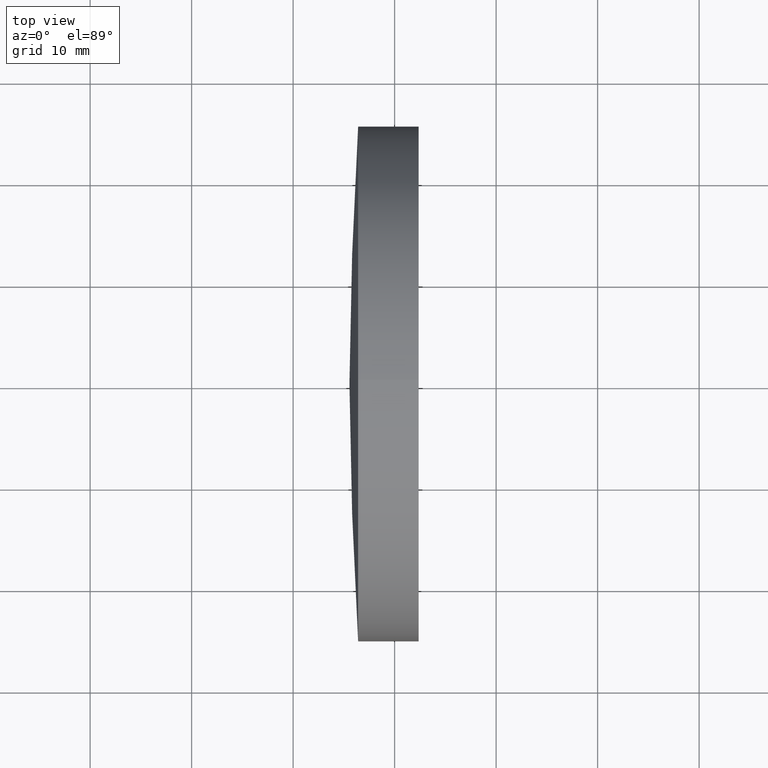
[diagram: clean part render]
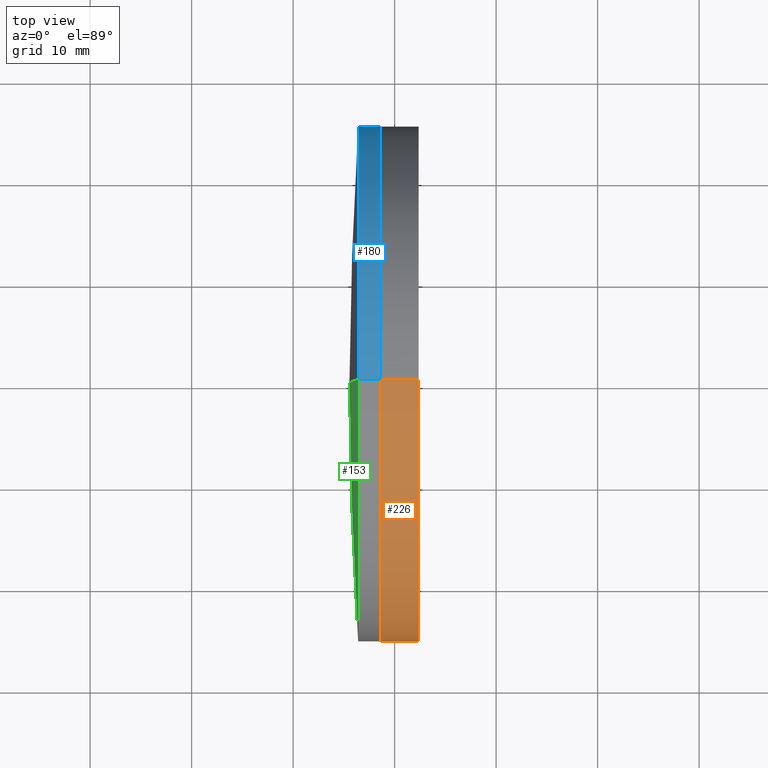
[diagram: same view with three faces highlighted in distinct colors, each labeled with its STEP entity id]
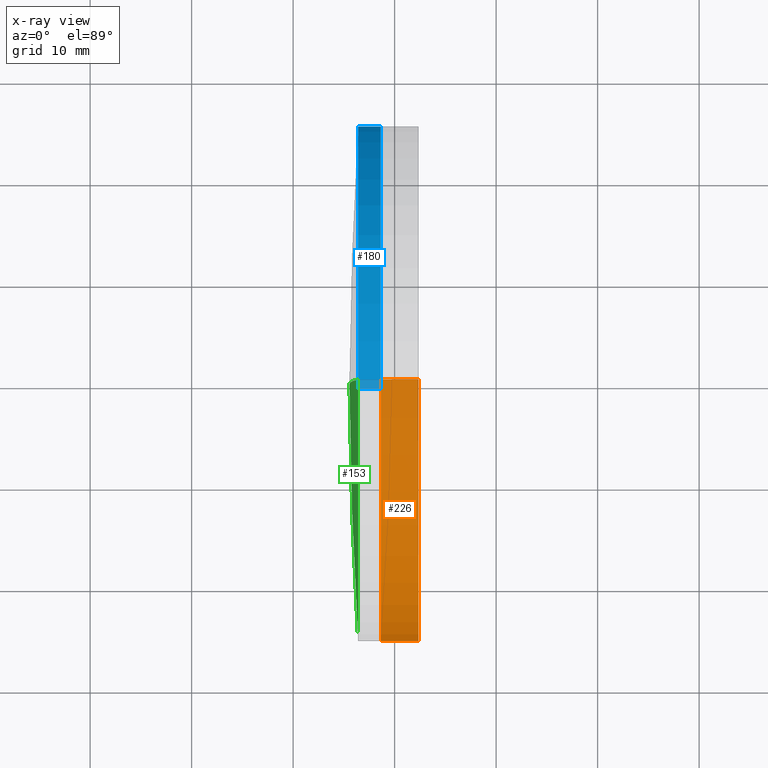
[diagram: x-ray of the same camera — body ghosted, the three highlighted faces saturated]
A machine part, top view with three faces highlighted in distinct colors.
The next image is the same camera in x-ray (body ghosted, the three faces saturated) — at least one of them is partly hidden behind the body in this view.
Their STEP definitions:

[orange] entity #226 — the highlighted cylindrical surface (partial cylindrical patch) has radius 25.4 mm, axis along (-1, -0, -0).
#6 = DIRECTION ( 'NONE',  ( -1.000000000000000000, -0.0000000000000000000, -0.0000000000000000000 ) ) ;
#20 = EDGE_CURVE ( 'NONE', #96, #270, #123, .T. ) ;
#30 = DIRECTION ( 'NONE',  ( 0.0000000000000000000, 0.0000000000000000000, 1.000000000000000000 ) ) ;
#42 = CARTESIAN_POINT ( 'NONE',  ( -31.36118293043887900, 0.0000000000000000000, 0.0000000000000000000 ) ) ;
#49 = AXIS2_PLACEMENT_3D ( 'NONE', #70, #6, #261 ) ;
#57 = VERTEX_POINT ( 'NONE', #280 ) ;
#70 = CARTESIAN_POINT ( 'NONE',  ( -151.1284751181453600, 0.0000000000000000000, 0.0000000000000000000 ) ) ;
#83 = CIRCLE ( 'NONE', #228, 25.39999999999983900 ) ;
#90 = ORIENTED_EDGE ( 'NONE', *, *, #237, .F. ) ;
#92 = EDGE_LOOP ( 'NONE', ( #90, #178, #175, #165 ) ) ;
#96 = VERTEX_POINT ( 'NONE', #314 ) ;
#104 = CARTESIAN_POINT ( 'NONE',  ( -151.1284751181453600, 0.0000000000000000000, 25.39999999999991700 ) ) ;
#107 = FACE_OUTER_BOUND ( 'NONE', #92, .T. ) ;
#121 = VECTOR ( 'NONE', #131, 1000.000000000000000 ) ;
#123 = CIRCLE ( 'NONE', #255, 25.39999999999998800 ) ;
#128 = LINE ( 'NONE', #307, #121 ) ;
#131 = DIRECTION ( 'NONE',  ( -1.000000000000000000, -0.0000000000000000000, -0.0000000000000000000 ) ) ;
#144 = DIRECTION ( 'NONE',  ( -1.000000000000000000, -0.0000000000000000000, -0.0000000000000000000 ) ) ;
#164 = VECTOR ( 'NONE', #144, 1000.000000000000000 ) ;
#165 = ORIENTED_EDGE ( 'NONE', *, *, #20, .F. ) ;
#175 = ORIENTED_EDGE ( 'NONE', *, *, #267, .T. ) ;
#178 = ORIENTED_EDGE ( 'NONE', *, *, #287, .T. ) ;
#182 = CARTESIAN_POINT ( 'NONE',  ( -31.36118293043887900, 0.0000000000000000000, 25.40000000000004800 ) ) ;
#198 = DIRECTION ( 'NONE',  ( -1.000000000000000000, -0.0000000000000000000, -0.0000000000000000000 ) ) ;
#212 = CARTESIAN_POINT ( 'NONE',  ( -27.64006978316091400, 0.0000000000000000000, 25.39999999999983900 ) ) ;
#226 = ADVANCED_FACE ( 'NONE', ( #107 ), #253, .T. ) ;
#228 = AXIS2_PLACEMENT_3D ( 'NONE', #341, #198, #234 ) ;
#234 = DIRECTION ( 'NONE',  ( 0.0000000000000000000, 0.0000000000000000000, 1.000000000000000000 ) ) ;
#237 = EDGE_CURVE ( 'NONE', #57, #96, #128, .T. ) ;
#250 = VERTEX_POINT ( 'NONE', #212 ) ;
#253 = CYLINDRICAL_SURFACE ( 'NONE', #49, 25.39999999999991700 ) ;
#255 = AXIS2_PLACEMENT_3D ( 'NONE', #42, #347, #30 ) ;
#261 = DIRECTION ( 'NONE',  ( 0.0000000000000000000, 0.0000000000000000000, 1.000000000000000000 ) ) ;
#267 = EDGE_CURVE ( 'NONE', #250, #270, #295, .T. ) ;
#270 = VERTEX_POINT ( 'NONE', #182 ) ;
#280 = CARTESIAN_POINT ( 'NONE',  ( -27.64006978316091400, 3.110602869834261500E-015, -25.39999999999983900 ) ) ;
#287 = EDGE_CURVE ( 'NONE', #57, #250, #83, .T. ) ;
#295 = LINE ( 'NONE', #104, #164 ) ;
#307 = CARTESIAN_POINT ( 'NONE',  ( -151.1284751181453600, 3.110602869834266600E-015, -25.39999999999991700 ) ) ;
#314 = CARTESIAN_POINT ( 'NONE',  ( -31.36118293043887900, 3.110602869834283200E-015, -25.40000000000005500 ) ) ;
#341 = CARTESIAN_POINT ( 'NONE',  ( -27.64006978316091400, 0.0000000000000000000, 0.0000000000000000000 ) ) ;
#347 = DIRECTION ( 'NONE',  ( -1.000000000000000000, -0.0000000000000000000, -0.0000000000000000000 ) ) ;

[blue] entity #180 — the highlighted cylindrical surface (partial cylindrical patch) has radius 25.4 mm, axis along (-1, -0, -0).
#2 = ORIENTED_EDGE ( 'NONE', *, *, #124, .F. ) ;
#7 = CARTESIAN_POINT ( 'NONE',  ( -31.36118293043882600, 0.0000000000000000000, 25.39999999999999100 ) ) ;
#21 = VECTOR ( 'NONE', #330, 1000.000000000000000 ) ;
#43 = DIRECTION ( 'NONE',  ( -1.000000000000000000, -0.0000000000000000000, -0.0000000000000000000 ) ) ;
#61 = CARTESIAN_POINT ( 'NONE',  ( -402.0212655728769300, 0.0000000000000000000, 0.0000000000000000000 ) ) ;
#85 = DIRECTION ( 'NONE',  ( 0.0000000000000000000, 0.0000000000000000000, 1.000000000000000000 ) ) ;
#87 = AXIS2_PLACEMENT_3D ( 'NONE', #319, #322, #85 ) ;
#89 = ORIENTED_EDGE ( 'NONE', *, *, #112, .T. ) ;
#94 = CARTESIAN_POINT ( 'NONE',  ( -33.59384532777775700, 3.110602869834250000E-015, -25.39999999999978500 ) ) ;
#110 = AXIS2_PLACEMENT_3D ( 'NONE', #61, #243, #236 ) ;
#112 = EDGE_CURVE ( 'NONE', #221, #301, #244, .T. ) ;
#118 = CARTESIAN_POINT ( 'NONE',  ( -33.59384532777775700, 0.0000000000000000000, 25.39999999999977800 ) ) ;
#124 = EDGE_CURVE ( 'NONE', #143, #227, #339, .T. ) ;
#133 = EDGE_LOOP ( 'NONE', ( #206, #89, #149, #2 ) ) ;
#139 = DIRECTION ( 'NONE',  ( 0.0000000000000000000, 0.0000000000000000000, 1.000000000000000000 ) ) ;
#142 = CARTESIAN_POINT ( 'NONE',  ( -31.36118293043882600, 3.110602869834276100E-015, -25.39999999999999100 ) ) ;
#143 = VERTEX_POINT ( 'NONE', #7 ) ;
#149 = ORIENTED_EDGE ( 'NONE', *, *, #338, .F. ) ;
#180 = ADVANCED_FACE ( 'NONE', ( #203 ), #325, .T. ) ;
#186 = CARTESIAN_POINT ( 'NONE',  ( -402.0212655728769300, 0.0000000000000000000, 25.39999999999999100 ) ) ;
#203 = FACE_OUTER_BOUND ( 'NONE', #133, .T. ) ;
#206 = ORIENTED_EDGE ( 'NONE', *, *, #323, .T. ) ;
#220 = CARTESIAN_POINT ( 'NONE',  ( -31.36118293043882600, 0.0000000000000000000, 0.0000000000000000000 ) ) ;
#221 = VERTEX_POINT ( 'NONE', #142 ) ;
#227 = VERTEX_POINT ( 'NONE', #118 ) ;
#236 = DIRECTION ( 'NONE',  ( 0.0000000000000000000, 0.0000000000000000000, 1.000000000000000000 ) ) ;
#243 = DIRECTION ( 'NONE',  ( -1.000000000000000000, -0.0000000000000000000, -0.0000000000000000000 ) ) ;
#244 = LINE ( 'NONE', #311, #266 ) ;
#254 = DIRECTION ( 'NONE',  ( -1.000000000000000000, -0.0000000000000000000, -0.0000000000000000000 ) ) ;
#266 = VECTOR ( 'NONE', #254, 1000.000000000000000 ) ;
#286 = CIRCLE ( 'NONE', #87, 25.39999999999999100 ) ;
#301 = VERTEX_POINT ( 'NONE', #94 ) ;
#311 = CARTESIAN_POINT ( 'NONE',  ( -402.0212655728769300, 3.110602869834276100E-015, -25.39999999999999100 ) ) ;
#317 = AXIS2_PLACEMENT_3D ( 'NONE', #220, #43, #139 ) ;
#319 = CARTESIAN_POINT ( 'NONE',  ( -33.59384532777775700, 0.0000000000000000000, 0.0000000000000000000 ) ) ;
#322 = DIRECTION ( 'NONE',  ( -1.000000000000000000, -0.0000000000000000000, -0.0000000000000000000 ) ) ;
#323 = EDGE_CURVE ( 'NONE', #143, #221, #342, .T. ) ;
#325 = CYLINDRICAL_SURFACE ( 'NONE', #110, 25.39999999999999100 ) ;
#330 = DIRECTION ( 'NONE',  ( -1.000000000000000000, -0.0000000000000000000, -0.0000000000000000000 ) ) ;
#338 = EDGE_CURVE ( 'NONE', #227, #301, #286, .T. ) ;
#339 = LINE ( 'NONE', #186, #21 ) ;
#342 = CIRCLE ( 'NONE', #317, 25.39999999999999100 ) ;

[green] entity #153 — the highlighted spherical surface has radius 376.8 mm.
#33 = CIRCLE ( 'NONE', #201, 376.8000000000000100 ) ;
#41 = EDGE_CURVE ( 'NONE', #301, #227, #117, .T. ) ;
#45 = ORIENTED_EDGE ( 'NONE', *, *, #298, .F. ) ;
#60 = ORIENTED_EDGE ( 'NONE', *, *, #41, .T. ) ;
#62 = AXIS2_PLACEMENT_3D ( 'NONE', #188, #77, #303 ) ;
#73 = EDGE_LOOP ( 'NONE', ( #45, #60, #113 ) ) ;
#77 = DIRECTION ( 'NONE',  ( 0.0000000000000000000, -1.000000000000000000, 0.0000000000000000000 ) ) ;
#84 = VERTEX_POINT ( 'NONE', #263 ) ;
#94 = CARTESIAN_POINT ( 'NONE',  ( -33.59384532777775700, 3.110602869834250000E-015, -25.39999999999978500 ) ) ;
#95 = DIRECTION ( 'NONE',  ( 0.0000000000000000000, 1.000000000000000000, 0.0000000000000000000 ) ) ;
#97 = CARTESIAN_POINT ( 'NONE',  ( 342.3490758717043700, 0.0000000000000000000, -7.663786165743663600E-015 ) ) ;
#113 = ORIENTED_EDGE ( 'NONE', *, *, #247, .T. ) ;
#117 = CIRCLE ( 'NONE', #146, 25.39999999999999100 ) ;
#118 = CARTESIAN_POINT ( 'NONE',  ( -33.59384532777775700, 0.0000000000000000000, 25.39999999999977800 ) ) ;
#141 = FACE_OUTER_BOUND ( 'NONE', #73, .T. ) ;
#146 = AXIS2_PLACEMENT_3D ( 'NONE', #284, #214, #299 ) ;
#153 = ADVANCED_FACE ( 'NONE', ( #141 ), #256, .T. ) ;
#173 = CIRCLE ( 'NONE', #62, 376.8000000000000100 ) ;
#188 = CARTESIAN_POINT ( 'NONE',  ( 342.3490758717043700, 0.0000000000000000000, -7.663786165743663600E-015 ) ) ;
#201 = AXIS2_PLACEMENT_3D ( 'NONE', #97, #259, #272 ) ;
#214 = DIRECTION ( 'NONE',  ( -1.000000000000000000, -0.0000000000000000000, -0.0000000000000000000 ) ) ;
#218 = CARTESIAN_POINT ( 'NONE',  ( 342.3490758717043700, 0.0000000000000000000, -7.663786165743663600E-015 ) ) ;
#227 = VERTEX_POINT ( 'NONE', #118 ) ;
#247 = EDGE_CURVE ( 'NONE', #227, #84, #173, .T. ) ;
#256 = SPHERICAL_SURFACE ( 'NONE', #312, 376.8000000000000100 ) ;
#259 = DIRECTION ( 'NONE',  ( -0.0000000000000000000, 1.000000000000000000, 1.224646799147353200E-016 ) ) ;
#263 = CARTESIAN_POINT ( 'NONE',  ( -34.45092412829564700, 0.0000000000000000000, 1.540855953019247200E-014 ) ) ;
#272 = DIRECTION ( 'NONE',  ( 0.0000000000000000000, -1.224646799147353200E-016, 1.000000000000000000 ) ) ;
#284 = CARTESIAN_POINT ( 'NONE',  ( -33.59384532777775700, 0.0000000000000000000, 0.0000000000000000000 ) ) ;
#298 = EDGE_CURVE ( 'NONE', #301, #84, #33, .T. ) ;
#299 = DIRECTION ( 'NONE',  ( 0.0000000000000000000, 0.0000000000000000000, 1.000000000000000000 ) ) ;
#301 = VERTEX_POINT ( 'NONE', #94 ) ;
#303 = DIRECTION ( 'NONE',  ( 0.0000000000000000000, 0.0000000000000000000, -1.000000000000000000 ) ) ;
#312 = AXIS2_PLACEMENT_3D ( 'NONE', #218, #95, #316 ) ;
#316 = DIRECTION ( 'NONE',  ( 0.0000000000000000000, 0.0000000000000000000, 1.000000000000000000 ) ) ;